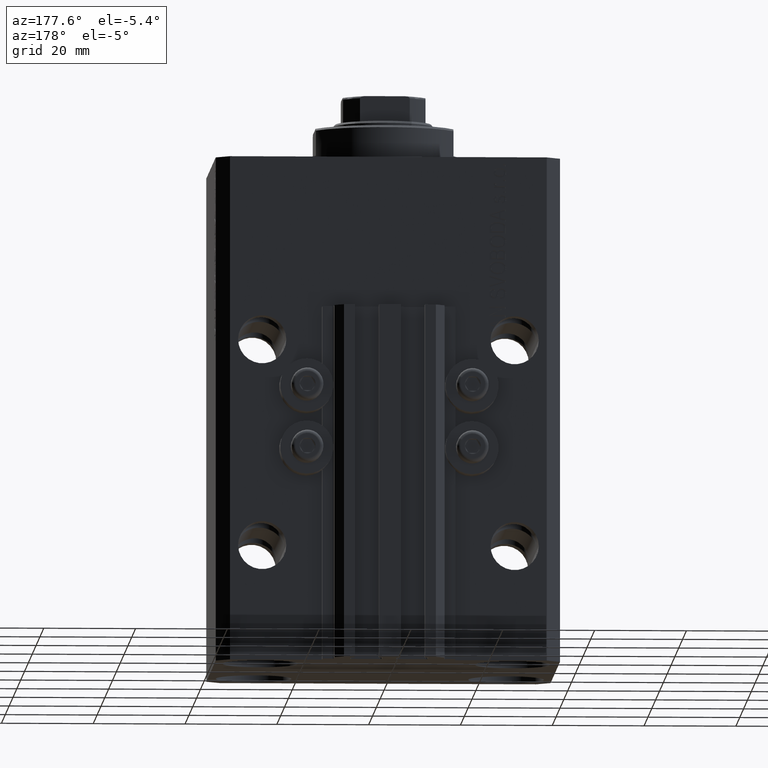
[diagram: clean part render]
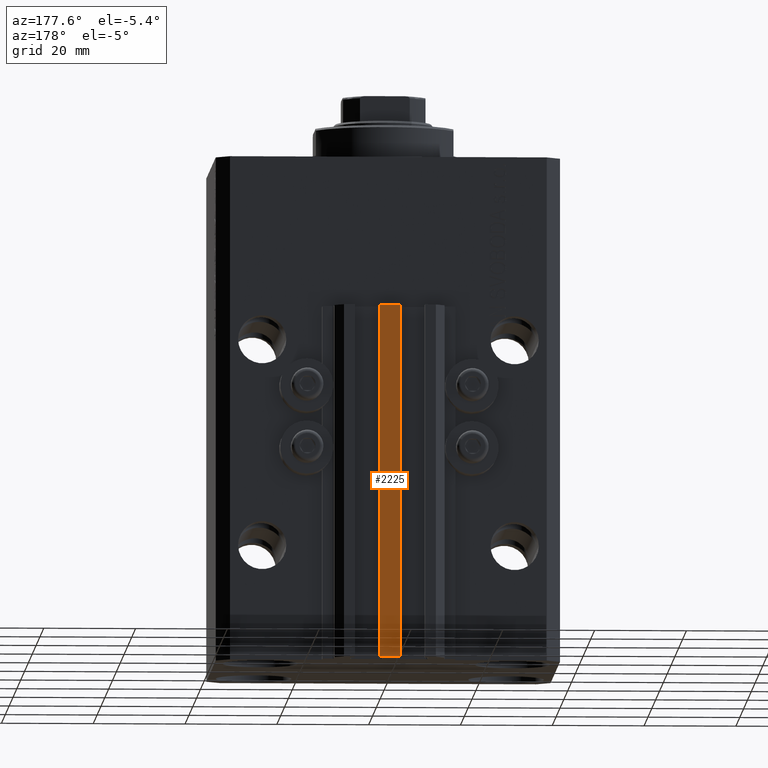
[diagram: same view with one face highlighted and labeled with its STEP entity id]
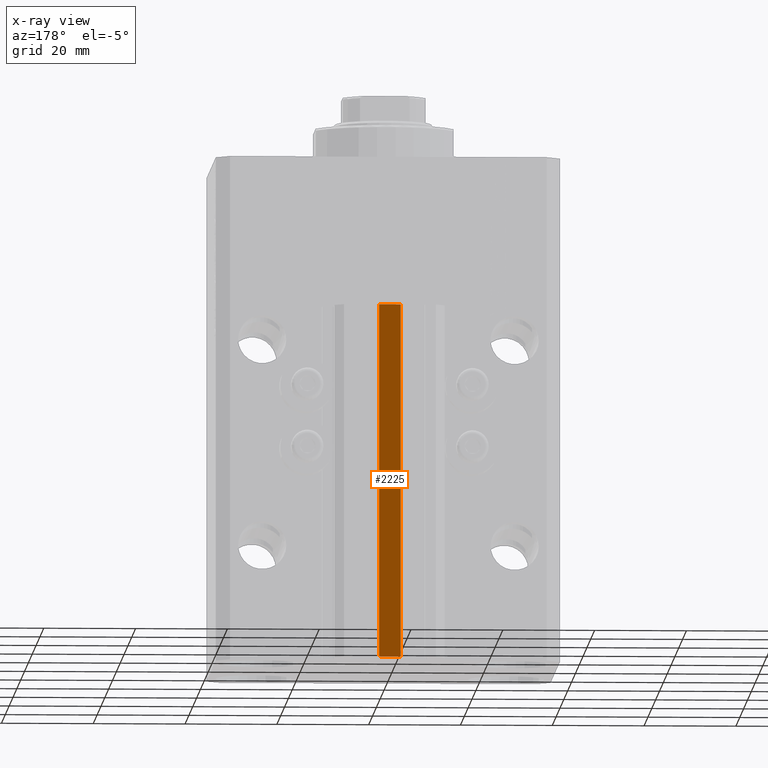
[diagram: x-ray of the same camera — body ghosted, the highlighted face saturated]
A machine part, auxiliary view. The second image highlights one B-rep face of the part: STEP entity #2225.
The next image is the same camera in x-ray: the body ghosted, the highlighted face saturated — about 0% of this face is hidden behind the body in this view.
In plain terms, the highlighted planar face has unit normal (0, -1, 0).
Its self-contained STEP definition (entity closure, byte-faithful):
#110 = EDGE_CURVE ( 'NONE', #43684, #30250, #21283, .T. ) ;
#1934 = FACE_OUTER_BOUND ( 'NONE', #27108, .T. ) ;
#2225 = ADVANCED_FACE ( 'NONE', ( #1934 ), #33784, .F. ) ;
#4224 = VECTOR ( 'NONE', #21756, 1000.000000000000000 ) ;
#6326 = EDGE_CURVE ( 'NONE', #43684, #43234, #24215, .T. ) ;
#8230 = LINE ( 'NONE', #15167, #36613 ) ;
#8248 = VECTOR ( 'NONE', #27583, 1000.000000000000000 ) ;
#9173 = CARTESIAN_POINT ( 'NONE',  ( -2.350000000000003642, 35.50000000000001421, -110.0000000000000000 ) ) ;
#10064 = CARTESIAN_POINT ( 'NONE',  ( -2.350000000000003642, 35.50000000000001421, -110.0000000000000000 ) ) ;
#11840 = DIRECTION ( 'NONE',  ( 0.000000000000000000, 0.000000000000000000, 1.000000000000000000 ) ) ;
#12680 = DIRECTION ( 'NONE',  ( 0.000000000000000000, -0.000000000000000000, -1.000000000000000000 ) ) ;
#14930 = DIRECTION ( 'NONE',  ( 1.000000000000000000, 0.000000000000000000, 0.000000000000000000 ) ) ;
#15167 = CARTESIAN_POINT ( 'NONE',  ( -2.350000000000003642, 35.50000000000001421, -33.00000000000000000 ) ) ;
#15513 = CARTESIAN_POINT ( 'NONE',  ( 2.349999999999999645, 35.50000000000001421, -110.0000000000000000 ) ) ;
#15892 = LINE ( 'NONE', #25957, #44233 ) ;
#18788 = AXIS2_PLACEMENT_3D ( 'NONE', #37614, #34013, #12680 ) ;
#21283 = LINE ( 'NONE', #10064, #4224 ) ;
#21756 = DIRECTION ( 'NONE',  ( 0.000000000000000000, 0.000000000000000000, 1.000000000000000000 ) ) ;
#22453 = EDGE_CURVE ( 'NONE', #30250, #46074, #8230, .T. ) ;
#23190 = ORIENTED_EDGE ( 'NONE', *, *, #110, .T. ) ;
#24046 = CARTESIAN_POINT ( 'NONE',  ( -2.350000000000003642, 35.50000000000001421, -110.0000000000000000 ) ) ;
#24167 = EDGE_CURVE ( 'NONE', #43234, #46074, #15892, .T. ) ;
#24215 = LINE ( 'NONE', #9173, #8248 ) ;
#25957 = CARTESIAN_POINT ( 'NONE',  ( 2.349999999999999645, 35.50000000000001421, -110.0000000000000000 ) ) ;
#27108 = EDGE_LOOP ( 'NONE', ( #31263, #28006, #43102, #23190 ) ) ;
#27583 = DIRECTION ( 'NONE',  ( 1.000000000000000000, 0.000000000000000000, 0.000000000000000000 ) ) ;
#28006 = ORIENTED_EDGE ( 'NONE', *, *, #24167, .F. ) ;
#30250 = VERTEX_POINT ( 'NONE', #42714 ) ;
#31263 = ORIENTED_EDGE ( 'NONE', *, *, #22453, .T. ) ;
#33784 = PLANE ( 'NONE',  #18788 ) ;
#34013 = DIRECTION ( 'NONE',  ( 0.000000000000000000, -1.000000000000000000, 0.000000000000000000 ) ) ;
#36613 = VECTOR ( 'NONE', #14930, 1000.000000000000000 ) ;
#37614 = CARTESIAN_POINT ( 'NONE',  ( -2.350000000000003642, 35.50000000000001421, -110.0000000000000000 ) ) ;
#42714 = CARTESIAN_POINT ( 'NONE',  ( -2.350000000000003642, 35.50000000000001421, -33.00000000000000000 ) ) ;
#43102 = ORIENTED_EDGE ( 'NONE', *, *, #6326, .F. ) ;
#43234 = VERTEX_POINT ( 'NONE', #15513 ) ;
#43684 = VERTEX_POINT ( 'NONE', #24046 ) ;
#44027 = CARTESIAN_POINT ( 'NONE',  ( 2.349999999999999645, 35.50000000000001421, -33.00000000000000000 ) ) ;
#44233 = VECTOR ( 'NONE', #11840, 1000.000000000000000 ) ;
#46074 = VERTEX_POINT ( 'NONE', #44027 ) ;